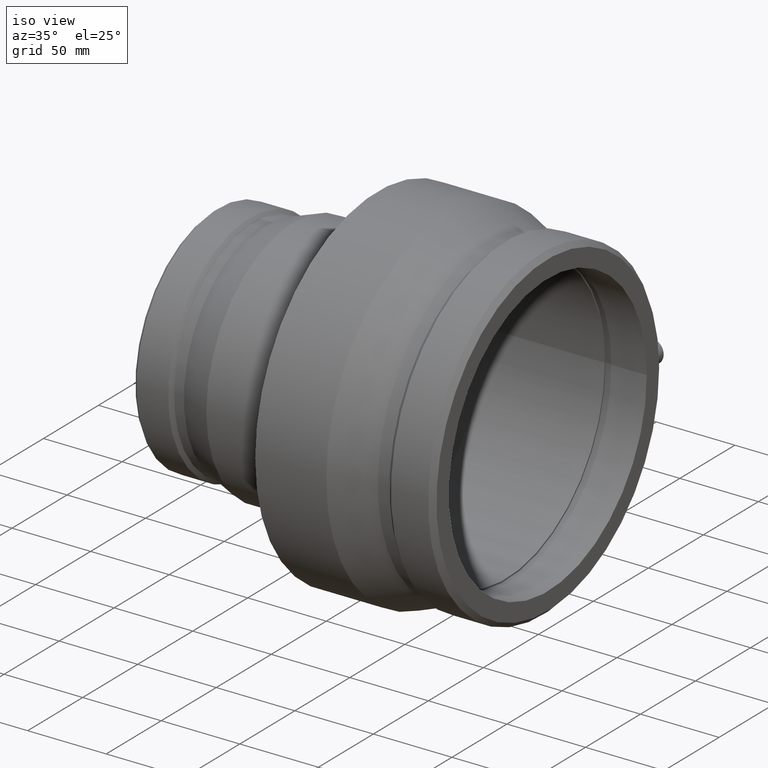
[diagram: clean part render]
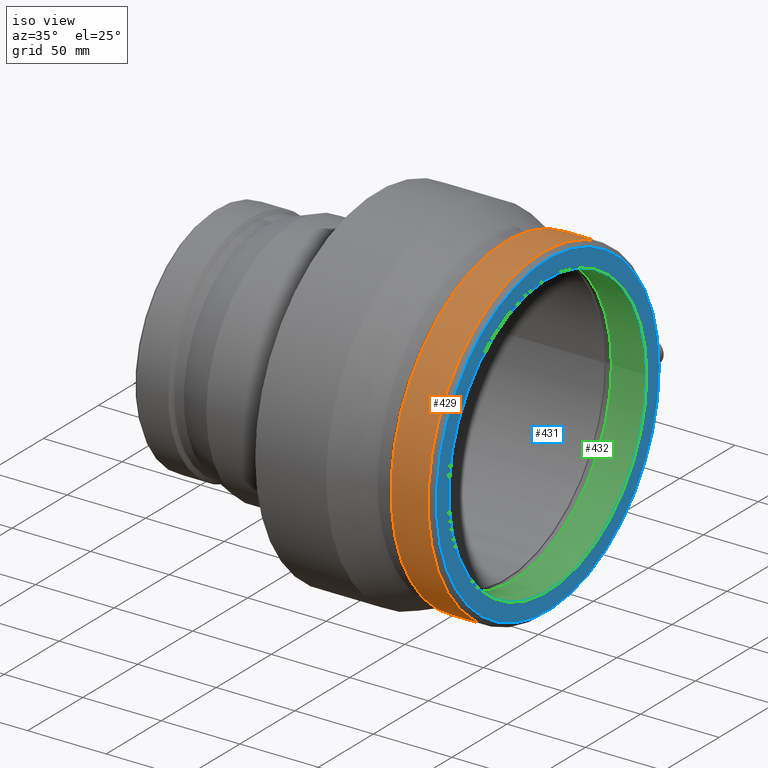
[diagram: same view with three faces highlighted in distinct colors, each labeled with its STEP entity id]
A machine part, iso view with three faces highlighted in distinct colors.
Their STEP definitions:

[orange] entity #429 — the highlighted cylindrical surface (bore or boss wall) has radius 104.34 mm, axis along (1, 0, 0).
#15=B_SPLINE_CURVE_WITH_KNOTS('',3,(#697,#698,#699,#700,#701,#702,#703,
#704,#705,#706,#707,#708,#709,#710,#711,#712,#713,#714,#715,#716,#717,#718,
#719,#720,#721,#722,#723,#724,#725,#726,#727,#728,#729,#730),
 .UNSPECIFIED.,.T.,.F.,(4,2,2,2,2,2,2,2,2,2,2,2,2,2,2,2,4),(0.,0.321807830485386,
0.643615660970773,0.965158013896067,1.28670036682136,1.60824271974665,1.92978507267195,
2.25159290315733,2.57340073364272,2.89520856412811,3.21701639461349,3.53855874753879,
3.86010110046408,4.18164345338937,4.50318580631467,4.82499363680005,5.14680146728544),
 .UNSPECIFIED.);
#52=FACE_BOUND('',#170,.T.);
#53=FACE_BOUND('',#171,.T.);
#77=CYLINDRICAL_SURFACE('',#493,104.34);
#107=FACE_OUTER_BOUND('',#169,.T.);
#169=EDGE_LOOP('',(#362));
#170=EDGE_LOOP('',(#363));
#171=EDGE_LOOP('',(#364));
#222=CIRCLE('',#492,104.34);
#223=CIRCLE('',#494,104.34);
#243=VERTEX_POINT('',#696);
#261=VERTEX_POINT('',#815);
#262=VERTEX_POINT('',#818);
#282=EDGE_CURVE('',#243,#243,#15,.T.);
#300=EDGE_CURVE('',#261,#261,#222,.T.);
#301=EDGE_CURVE('',#262,#262,#223,.T.);
#362=ORIENTED_EDGE('',*,*,#300,.T.);
#363=ORIENTED_EDGE('',*,*,#282,.T.);
#364=ORIENTED_EDGE('',*,*,#301,.F.);
#429=ADVANCED_FACE('',(#107,#52,#53),#77,.T.);
#492=AXIS2_PLACEMENT_3D('',#816,#616,#617);
#493=AXIS2_PLACEMENT_3D('',#817,#618,#619);
#494=AXIS2_PLACEMENT_3D('',#819,#620,#621);
#616=DIRECTION('center_axis',(1.,0.,0.));
#617=DIRECTION('ref_axis',(0.,0.,-1.));
#618=DIRECTION('center_axis',(1.,0.,0.));
#619=DIRECTION('ref_axis',(0.,1.,0.));
#620=DIRECTION('center_axis',(1.,0.,0.));
#621=DIRECTION('ref_axis',(0.,0.,-1.));
#696=CARTESIAN_POINT('',(91.065,103.989033164874,-8.55082343605934));
#697=CARTESIAN_POINT('Ctrl Pts',(91.065,103.989033164874,-8.55082343605934));
#698=CARTESIAN_POINT('Ctrl Pts',(92.1376927682847,103.989033164874,-8.55082343605934));
#699=CARTESIAN_POINT('Ctrl Pts',(93.2810978727274,104.007474993013,-8.33507634701797));
#700=CARTESIAN_POINT('Ctrl Pts',(95.3824856273538,104.073934435615,-7.45952558515216));
#701=CARTESIAN_POINT('Ctrl Pts',(96.3405198276963,104.120979284045,-6.79977206960962));
#702=CARTESIAN_POINT('Ctrl Pts',(97.8512435214572,104.209082328391,-5.28028707565662));
#703=CARTESIAN_POINT('Ctrl Pts',(98.5051281684951,104.255869957983,-4.31939873768231));
#704=CARTESIAN_POINT('Ctrl Pts',(99.3720681293771,104.321793632307,-2.2151747920769));
#705=CARTESIAN_POINT('Ctrl Pts',(99.5851178167123,104.34,-1.07180784308431));
#706=CARTESIAN_POINT('Ctrl Pts',(99.5851178167123,104.34,1.07180784308431));
#707=CARTESIAN_POINT('Ctrl Pts',(99.3720681293771,104.321793632307,2.2151747920769));
#708=CARTESIAN_POINT('Ctrl Pts',(98.5051281684951,104.255869957983,4.31939873768231));
#709=CARTESIAN_POINT('Ctrl Pts',(97.8512435214572,104.209082328391,5.28028707565661));
#710=CARTESIAN_POINT('Ctrl Pts',(96.3405198276963,104.120979284045,6.79977206960962));
#711=CARTESIAN_POINT('Ctrl Pts',(95.3824856273538,104.073934435615,7.45952558515215));
#712=CARTESIAN_POINT('Ctrl Pts',(93.2810978727274,104.007474993013,8.33507634701797));
#713=CARTESIAN_POINT('Ctrl Pts',(92.1376927682847,103.989033164874,8.55082343605934));
#714=CARTESIAN_POINT('Ctrl Pts',(89.9923072317154,103.989033164874,8.55082343605934));
#715=CARTESIAN_POINT('Ctrl Pts',(88.8489021272726,104.007474993013,8.33507634701797));
#716=CARTESIAN_POINT('Ctrl Pts',(86.7475143726463,104.073934435615,7.45952558515216));
#717=CARTESIAN_POINT('Ctrl Pts',(85.7894801723037,104.120979284045,6.79977206960962));
#718=CARTESIAN_POINT('Ctrl Pts',(84.2787564785429,104.209082328391,5.28028707565661));
#719=CARTESIAN_POINT('Ctrl Pts',(83.6248718315049,104.255869957983,4.31939873768231));
#720=CARTESIAN_POINT('Ctrl Pts',(82.7579318706229,104.321793632307,2.2151747920769));
#721=CARTESIAN_POINT('Ctrl Pts',(82.5448821832877,104.34,1.07180784308431));
#722=CARTESIAN_POINT('Ctrl Pts',(82.5448821832877,104.34,-1.07180784308431));
#723=CARTESIAN_POINT('Ctrl Pts',(82.7579318706229,104.321793632307,-2.2151747920769));
#724=CARTESIAN_POINT('Ctrl Pts',(83.6248718315049,104.255869957983,-4.31939873768231));
#725=CARTESIAN_POINT('Ctrl Pts',(84.2787564785429,104.209082328391,-5.28028707565661));
#726=CARTESIAN_POINT('Ctrl Pts',(85.7894801723037,104.120979284045,-6.79977206960962));
#727=CARTESIAN_POINT('Ctrl Pts',(86.7475143726463,104.073934435615,-7.45952558515217));
#728=CARTESIAN_POINT('Ctrl Pts',(88.8489021272726,104.007474993013,-8.33507634701798));
#729=CARTESIAN_POINT('Ctrl Pts',(89.9923072317154,103.989033164874,-8.55082343605934));
#730=CARTESIAN_POINT('Ctrl Pts',(91.065,103.989033164874,-8.55082343605934));
#815=CARTESIAN_POINT('',(79.2602,104.34,0.));
#816=CARTESIAN_POINT('Origin',(79.2602,0.,0.));
#817=CARTESIAN_POINT('Origin',(91.065,0.,0.));
#818=CARTESIAN_POINT('',(102.8698,104.34,0.));
#819=CARTESIAN_POINT('Origin',(102.8698,0.,0.));

[blue] entity #431 — the highlighted planar face has unit normal (1, 0, 0).
#55=FACE_BOUND('',#175,.T.);
#109=FACE_OUTER_BOUND('',#174,.T.);
#174=EDGE_LOOP('',(#367));
#175=EDGE_LOOP('',(#368));
#224=CIRCLE('',#496,101.2098);
#225=CIRCLE('',#498,90.);
#263=VERTEX_POINT('',#821);
#264=VERTEX_POINT('',#824);
#302=EDGE_CURVE('',#263,#263,#224,.T.);
#303=EDGE_CURVE('',#264,#264,#225,.T.);
#367=ORIENTED_EDGE('',*,*,#302,.T.);
#368=ORIENTED_EDGE('',*,*,#303,.F.);
#400=PLANE('',#497);
#431=ADVANCED_FACE('',(#109,#55),#400,.T.);
#496=AXIS2_PLACEMENT_3D('',#822,#624,#625);
#497=AXIS2_PLACEMENT_3D('',#823,#626,#627);
#498=AXIS2_PLACEMENT_3D('',#825,#628,#629);
#624=DIRECTION('center_axis',(1.,0.,0.));
#625=DIRECTION('ref_axis',(0.,0.,-1.));
#626=DIRECTION('center_axis',(1.,0.,0.));
#627=DIRECTION('ref_axis',(0.,0.,-1.));
#628=DIRECTION('center_axis',(1.,0.,0.));
#629=DIRECTION('ref_axis',(0.,0.,-1.));
#821=CARTESIAN_POINT('',(106.,101.2098,0.));
#822=CARTESIAN_POINT('Origin',(106.,0.,0.));
#823=CARTESIAN_POINT('Origin',(106.,90.,0.));
#824=CARTESIAN_POINT('',(106.,90.,0.));
#825=CARTESIAN_POINT('Origin',(106.,0.,0.));

[green] entity #432 — the highlighted cylindrical surface (bore or boss wall) has radius 90 mm, axis along (1, 0, 0).
#56=FACE_BOUND('',#177,.T.);
#78=CYLINDRICAL_SURFACE('',#499,90.);
#110=FACE_OUTER_BOUND('',#176,.T.);
#176=EDGE_LOOP('',(#369));
#177=EDGE_LOOP('',(#370));
#225=CIRCLE('',#498,90.);
#226=CIRCLE('',#500,90.);
#264=VERTEX_POINT('',#824);
#265=VERTEX_POINT('',#827);
#303=EDGE_CURVE('',#264,#264,#225,.T.);
#304=EDGE_CURVE('',#265,#265,#226,.T.);
#369=ORIENTED_EDGE('',*,*,#303,.T.);
#370=ORIENTED_EDGE('',*,*,#304,.F.);
#432=ADVANCED_FACE('',(#110,#56),#78,.F.);
#498=AXIS2_PLACEMENT_3D('',#825,#628,#629);
#499=AXIS2_PLACEMENT_3D('',#826,#630,#631);
#500=AXIS2_PLACEMENT_3D('',#828,#632,#633);
#628=DIRECTION('center_axis',(1.,0.,0.));
#629=DIRECTION('ref_axis',(0.,0.,-1.));
#630=DIRECTION('center_axis',(1.,0.,0.));
#631=DIRECTION('ref_axis',(0.,1.,0.));
#632=DIRECTION('center_axis',(1.,0.,0.));
#633=DIRECTION('ref_axis',(0.,0.,-1.));
#824=CARTESIAN_POINT('',(106.,90.,0.));
#825=CARTESIAN_POINT('Origin',(106.,0.,0.));
#826=CARTESIAN_POINT('Origin',(94.7551,0.,0.));
#827=CARTESIAN_POINT('',(83.5102,90.,0.));
#828=CARTESIAN_POINT('Origin',(83.5102,0.,0.));